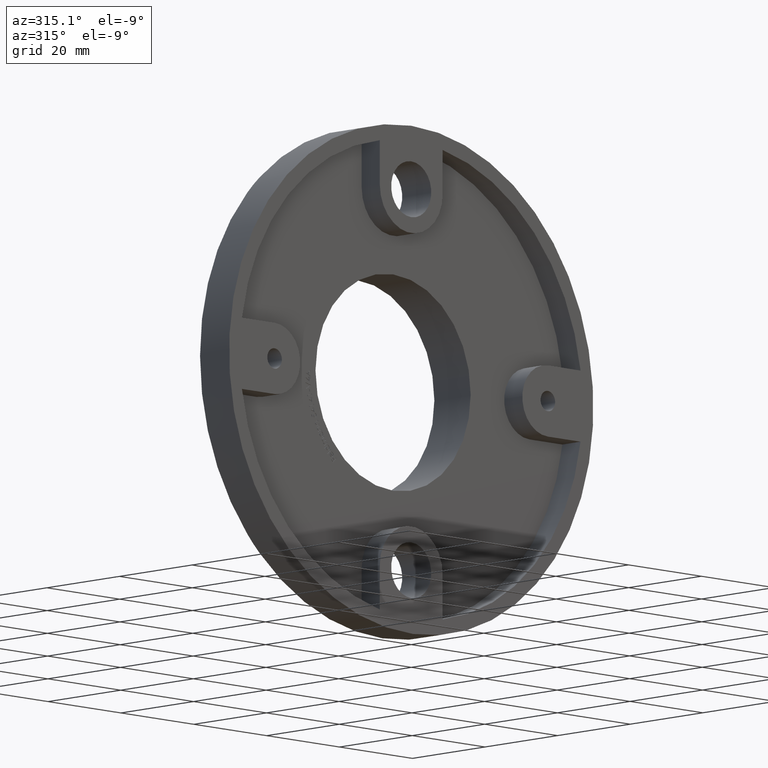
[diagram: clean part render]
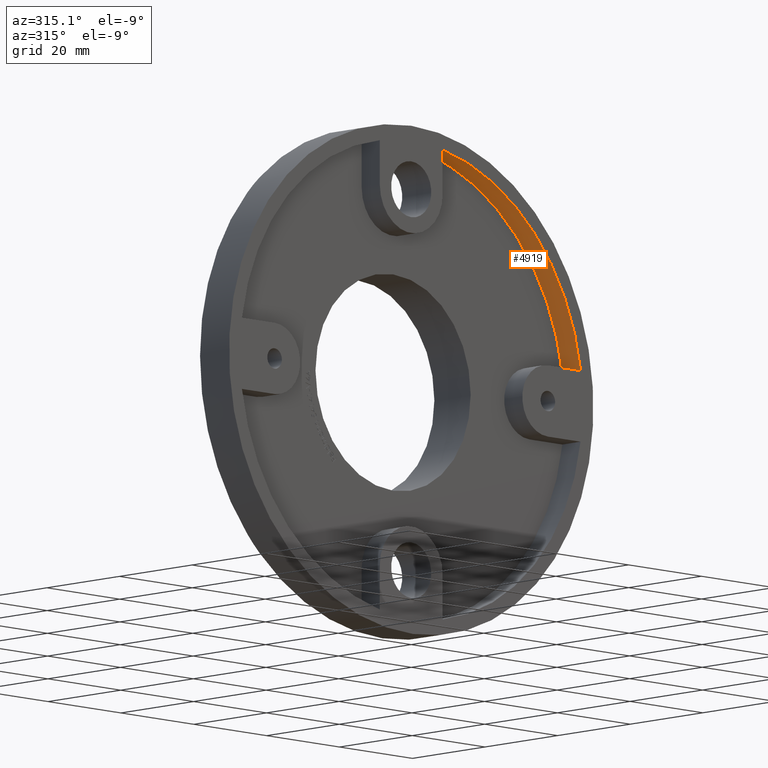
[diagram: same view with one face highlighted and labeled with its STEP entity id]
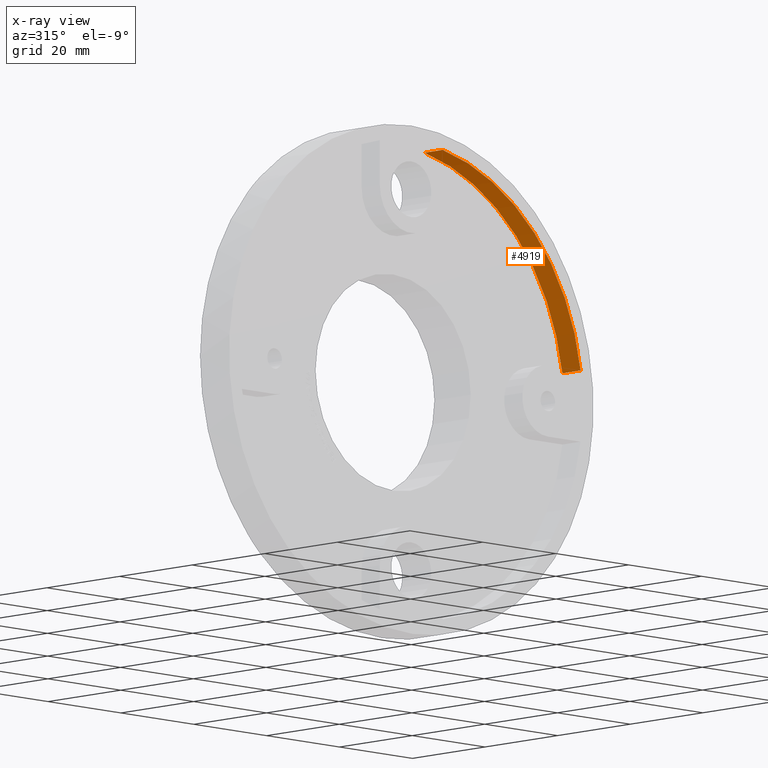
[diagram: x-ray of the same camera — body ghosted, the highlighted face saturated]
A machine part, auxiliary view. The second image highlights one B-rep face of the part: STEP entity #4919.
The next image is the same camera in x-ray: the body ghosted, the highlighted face saturated — about 0% of this face is hidden behind the body in this view.
In plain terms, the highlighted cylindrical surface (partial cylindrical patch) has radius 47 mm, axis along (-0, -1, -0).
Its self-contained STEP definition (entity closure, byte-faithful):
#226 = LINE ( 'NONE', #5002, #1245 ) ;
#615 = EDGE_CURVE ( 'NONE', #2961, #8202, #5935, .T. ) ;
#968 = VERTEX_POINT ( 'NONE', #3308 ) ;
#1003 = DIRECTION ( 'NONE',  ( -0.000000000000000000, -1.000000000000000000, -0.000000000000000000 ) ) ;
#1245 = VECTOR ( 'NONE', #5132, 1000.000000000000000 ) ;
#1793 = CYLINDRICAL_SURFACE ( 'NONE', #4986, 47.00000000000000000 ) ;
#2680 = FACE_OUTER_BOUND ( 'NONE', #6188, .T. ) ;
#2961 = VERTEX_POINT ( 'NONE', #3504 ) ;
#3116 = AXIS2_PLACEMENT_3D ( 'NONE', #7992, #6280, #10490 ) ;
#3308 = CARTESIAN_POINT ( 'NONE',  ( 46.47580015448900070, 5.000000000000000000, 7.000000000000004441 ) ) ;
#3504 = CARTESIAN_POINT ( 'NONE',  ( 46.47580015448900070, 0.000000000000000000, 7.000000000000004441 ) ) ;
#3700 = DIRECTION ( 'NONE',  ( 0.000000000000000000, 0.000000000000000000, -1.000000000000000000 ) ) ;
#3896 = ORIENTED_EDGE ( 'NONE', *, *, #6510, .F. ) ;
#4356 = VECTOR ( 'NONE', #1003, 1000.000000000000000 ) ;
#4604 = CIRCLE ( 'NONE', #3116, 47.00000000000000000 ) ;
#4919 = ADVANCED_FACE ( 'NONE', ( #2680 ), #1793, .F. ) ;
#4986 = AXIS2_PLACEMENT_3D ( 'NONE', #8640, #6136, #3700 ) ;
#5002 = CARTESIAN_POINT ( 'NONE',  ( 46.47580015448900070, 5.000000000000000000, 7.000000000000004441 ) ) ;
#5132 = DIRECTION ( 'NONE',  ( -0.000000000000000000, -1.000000000000000000, -0.000000000000000000 ) ) ;
#5175 = DIRECTION ( 'NONE',  ( 0.000000000000000000, -1.000000000000000000, 0.000000000000000000 ) ) ;
#5336 = ORIENTED_EDGE ( 'NONE', *, *, #6719, .T. ) ;
#5489 = EDGE_CURVE ( 'NONE', #6086, #8202, #10008, .T. ) ;
#5492 = ORIENTED_EDGE ( 'NONE', *, *, #5489, .F. ) ;
#5935 = CIRCLE ( 'NONE', #10460, 47.00000000000000000 ) ;
#6086 = VERTEX_POINT ( 'NONE', #7663 ) ;
#6136 = DIRECTION ( 'NONE',  ( -0.000000000000000000, -1.000000000000000000, -0.000000000000000000 ) ) ;
#6188 = EDGE_LOOP ( 'NONE', ( #8434, #5492, #3896, #5336 ) ) ;
#6280 = DIRECTION ( 'NONE',  ( 0.000000000000000000, -1.000000000000000000, 0.000000000000000000 ) ) ;
#6510 = EDGE_CURVE ( 'NONE', #968, #6086, #4604, .T. ) ;
#6719 = EDGE_CURVE ( 'NONE', #968, #2961, #226, .T. ) ;
#6880 = DIRECTION ( 'NONE',  ( 0.000000000000000000, 0.000000000000000000, -1.000000000000000000 ) ) ;
#7663 = CARTESIAN_POINT ( 'NONE',  ( 8.624999999999996447, 5.000000000000000000, 46.20183302640707268 ) ) ;
#7701 = CARTESIAN_POINT ( 'NONE',  ( 0.000000000000000000, 0.000000000000000000, 0.000000000000000000 ) ) ;
#7708 = CARTESIAN_POINT ( 'NONE',  ( 8.624999999999996447, 5.000000000000000000, 46.20183302640707268 ) ) ;
#7992 = CARTESIAN_POINT ( 'NONE',  ( 0.000000000000000000, 5.000000000000000000, 0.000000000000000000 ) ) ;
#8202 = VERTEX_POINT ( 'NONE', #9075 ) ;
#8434 = ORIENTED_EDGE ( 'NONE', *, *, #615, .T. ) ;
#8640 = CARTESIAN_POINT ( 'NONE',  ( 0.000000000000000000, 5.000000000000000000, 0.000000000000000000 ) ) ;
#9075 = CARTESIAN_POINT ( 'NONE',  ( 8.624999999999996447, 0.000000000000000000, 46.20183302640707268 ) ) ;
#10008 = LINE ( 'NONE', #7708, #4356 ) ;
#10460 = AXIS2_PLACEMENT_3D ( 'NONE', #7701, #5175, #6880 ) ;
#10490 = DIRECTION ( 'NONE',  ( 0.000000000000000000, 0.000000000000000000, -1.000000000000000000 ) ) ;